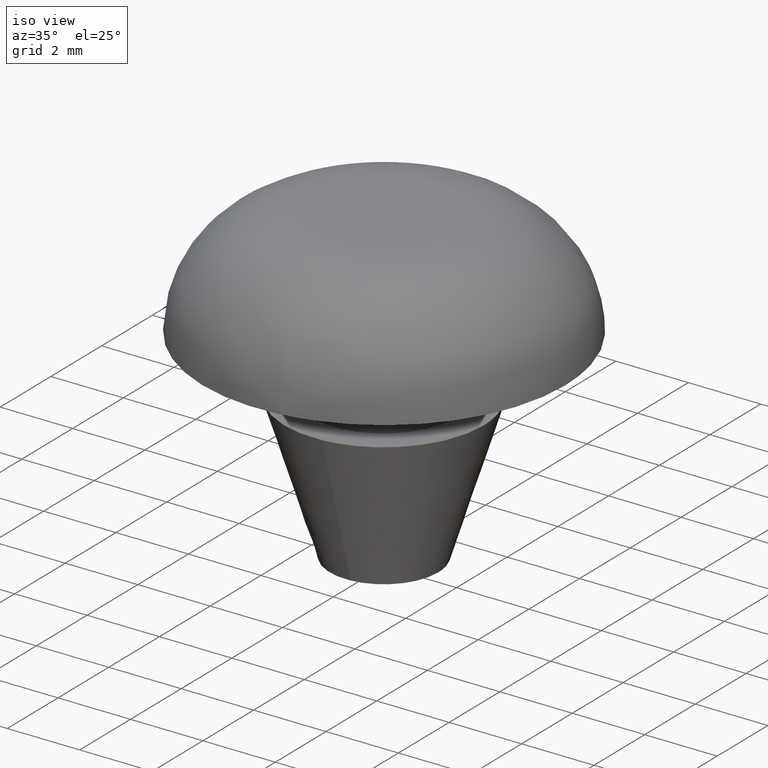
[diagram: clean part render]
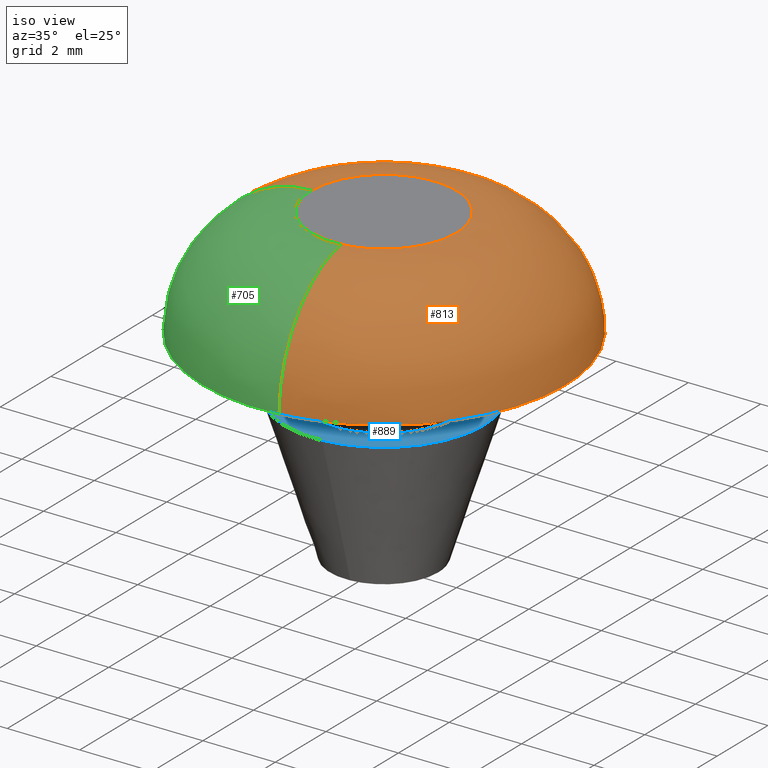
[diagram: same view with three faces highlighted in distinct colors, each labeled with its STEP entity id]
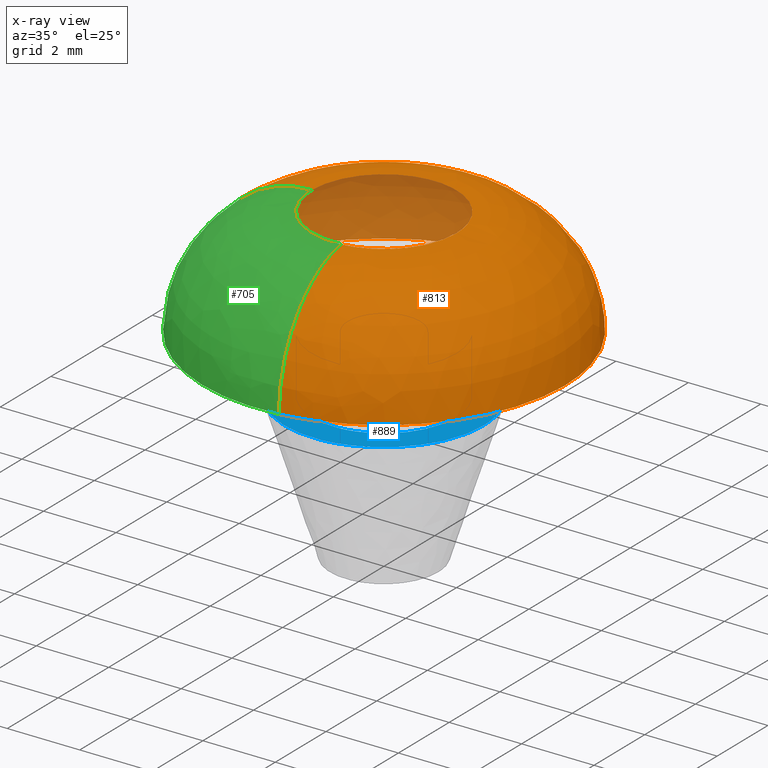
[diagram: x-ray of the same camera — body ghosted, the three highlighted faces saturated]
A machine part, iso view with three faces highlighted in distinct colors.
The next image is the same camera in x-ray (body ghosted, the three faces saturated) — at least one of them is partly hidden behind the body in this view.
Their STEP definitions:

[orange] entity #813 — the highlighted face is a freeform B-spline surface patch.
#635=CARTESIAN_POINT('',(0.230927431329645,-1.986621064501005,8.599999999998211));
#636=VERTEX_POINT('',#635);
#637=CARTESIAN_POINT('',(-1.999999910256900,0.0,8.599999999999998));
#638=VERTEX_POINT('',#637);
#654=CARTESIAN_POINT('',(-5.0,0.0,5.599999999999914));
#655=VERTEX_POINT('',#654);
#656=CARTESIAN_POINT('',(-5.000000000000001,0.0,5.599999999999914));
#657=CARTESIAN_POINT('',(-5.000000000000069,0.0,6.810153582727156));
#658=CARTESIAN_POINT('',(-4.160317843093622,0.0,7.681592375276995));
#659=CARTESIAN_POINT('',(-3.275378400517708,0.0,8.600000076304280));
#660=CARTESIAN_POINT('',(-1.999999910256900,0.0,8.600000000000000));
#668=(BOUNDED_CURVE()B_SPLINE_CURVE(2,(#656,#657,#658,#659,#660),.UNSPECIFIED.,.F.,.U.)B_SPLINE_CURVE_WITH_KNOTS((3,2,3),(0.499999999999988,0.666666666666667,0.841001366655721),.UNSPECIFIED.)CURVE()GEOMETRIC_REPRESENTATION_ITEM()RATIONAL_B_SPLINE_CURVE((0.860052973848937,0.860052973848927,1.0,0.853614263089564,0.860349207340873))REPRESENTATION_ITEM(''));
#669=EDGE_CURVE('',#655,#638,#668,.T.);
#671=CARTESIAN_POINT('',(0.577318058448556,-4.966558552899535,5.599999966541873));
#672=VERTEX_POINT('',#671);
#688=CARTESIAN_POINT('',(0.577318058448556,-4.966558552899536,5.599999966541873));
#689=CARTESIAN_POINT('',(0.577318529622757,-4.966558511717206,6.810153568720121));
#690=CARTESIAN_POINT('',(0.480365938960503,-4.132492361789115,7.681592375276559));
#691=CARTESIAN_POINT('',(0.378187686940704,-3.253470762815832,8.600000984968549));
#692=CARTESIAN_POINT('',(0.230927431329645,-1.986621064501005,8.599999999998211));
#700=(BOUNDED_CURVE()B_SPLINE_CURVE(2,(#688,#689,#690,#691,#692),.UNSPECIFIED.,.F.,.U.)B_SPLINE_CURVE_WITH_KNOTS((3,2,3),(0.499999997696014,0.666666666666667,0.841001513891619),.UNSPECIFIED.)CURVE()GEOMETRIC_REPRESENTATION_ITEM()RATIONAL_B_SPLINE_CURVE((0.822972751584642,0.822972749733435,0.956886118190660,0.816811520338825,0.823256224186568))REPRESENTATION_ITEM(''));
#701=EDGE_CURVE('',#672,#636,#700,.T.);
#706=CARTESIAN_POINT('',(-4.989820220953832,0.0,5.353068741598854));
#707=CARTESIAN_POINT('',(-5.101464853375409,0.0,6.704851345941022));
#708=CARTESIAN_POINT('',(-4.160317843093622,0.0,7.681592375276995));
#709=CARTESIAN_POINT('',(-3.172363074020589,0.0,8.706911424840628));
#710=CARTESIAN_POINT('',(-1.753339234404508,0.0,8.589842548816884));
#711=CARTESIAN_POINT('',(-4.989820220953833,4.989820220953833,5.353068741598856));
#712=CARTESIAN_POINT('',(-5.101464853375410,5.101464853375410,6.704851345941023));
#713=CARTESIAN_POINT('',(-4.160317843093622,4.160317843093622,7.681592375276994));
#714=CARTESIAN_POINT('',(-3.172363074020589,3.172363074020589,8.706911424840630));
#715=CARTESIAN_POINT('',(-1.753339234404508,1.753339234404508,8.589842548816886));
#716=CARTESIAN_POINT('',(0.0,4.989820220953832,5.353068741598854));
#717=CARTESIAN_POINT('',(0.0,5.101464853375409,6.704851345941022));
#718=CARTESIAN_POINT('',(0.0,4.160317843093622,7.681592375276995));
#719=CARTESIAN_POINT('',(0.0,3.172363074020589,8.706911424840628));
#720=CARTESIAN_POINT('',(0.0,1.753339234404508,8.589842548816884));
#721=CARTESIAN_POINT('',(4.989820220953833,4.989820220953833,5.353068741598856));
#722=CARTESIAN_POINT('',(5.101464853375410,5.101464853375410,6.704851345941023));
#723=CARTESIAN_POINT('',(4.160317843093622,4.160317843093622,7.681592375276994));
#724=CARTESIAN_POINT('',(3.172363074020589,3.172363074020589,8.706911424840630));
#725=CARTESIAN_POINT('',(1.753339234404508,1.753339234404508,8.589842548816886));
#726=CARTESIAN_POINT('',(4.989820220953832,0.0,5.353068741598854));
#727=CARTESIAN_POINT('',(5.101464853375409,0.0,6.704851345941022));
#728=CARTESIAN_POINT('',(4.160317843093622,0.0,7.681592375276995));
#729=CARTESIAN_POINT('',(3.172363074020589,0.0,8.706911424840628));
#730=CARTESIAN_POINT('',(1.753339234404508,0.0,8.589842548816884));
#731=CARTESIAN_POINT('',(4.989820220953833,-4.443393495377855,5.353068741598854));
#732=CARTESIAN_POINT('',(5.101464853375411,-4.542812113991143,6.704851345941023));
#733=CARTESIAN_POINT('',(4.160317843093622,-3.704728512077121,7.681592375276994));
#734=CARTESIAN_POINT('',(3.172363074020589,-2.824962989425185,8.706911424840628));
#735=CARTESIAN_POINT('',(1.753339234404507,-1.561334036971481,8.589842548816884));
#736=CARTESIAN_POINT('',(0.576145746293084,-4.956446500918591,5.353068741598856));
#737=CARTESIAN_POINT('',(0.589036707734146,-5.067344413710826,6.704851345941022));
#738=CARTESIAN_POINT('',(0.480367893508480,-4.132492134590143,7.681592375276995));
#739=CARTESIAN_POINT('',(0.366294457487454,-3.151145163876671,8.706911424840627));
#740=CARTESIAN_POINT('',(0.202447963449438,-1.741612268272524,8.589842548816884));
#748=(BOUNDED_SURFACE()B_SPLINE_SURFACE(2,2,((#706,#711,#716,#721,#726,#731,#736),(#707,#712,#717,#722,#727,#732,#737),(#708,#713,#718,#723,#728,#733,#738),(#709,#714,#719,#724,#729,#734,#739),(#710,#715,#720,#725,#730,#735,#740)),.UNSPECIFIED.,.F.,.F.,.U.)B_SPLINE_SURFACE_WITH_KNOTS((3,2,3),(3,2,2,3),(0.0,2.663132058494239,5.437431253561975),(0.0,8.267404837290364,16.534809674580728,24.140822124887858),.UNSPECIFIED.)GEOMETRIC_REPRESENTATION_ITEM()RATIONAL_B_SPLINE_SURFACE(((0.861514645304643,0.609182847786437,0.861514645304643,0.609182847786437,0.861514645304643,0.629369391587893,0.824371404709963),(0.845750646295843,0.598036017188695,0.845750646295843,0.598036017188695,0.845750646295843,0.617853187517267,0.809287052891270),(1.0,0.707106781186548,1.0,0.707106781186548,1.0,0.730538238691624,0.956886118190660),(0.839311814652135,0.593483075670512,0.839311814652135,0.593483075670512,0.839311814652135,0.613149374789042,0.803125824274040),(0.863126963319515,0.610322928788181,0.863126963319515,0.610322928788181,0.863126963319515,0.630547251550688,0.825914209436503)))REPRESENTATION_ITEM('')SURFACE());
#749=CARTESIAN_POINT('',(2.0,0.0,8.600000000000000));
#750=VERTEX_POINT('',#749);
#751=CARTESIAN_POINT('',(2.0,0.0,8.600000000000000));
#752=CARTESIAN_POINT('',(1.999999866241687,-1.780982936703756,8.599999999999104));
#753=CARTESIAN_POINT('',(0.230927431329646,-1.986621064501006,8.599999999998211));
#761=(BOUNDED_CURVE()B_SPLINE_CURVE(2,(#751,#752,#753),.UNSPECIFIED.,.F.,.U.)B_SPLINE_CURVE_WITH_KNOTS((3,3),(0.500000000000000,0.730000064695423),.UNSPECIFIED.)CURVE()GEOMETRIC_REPRESENTATION_ITEM()RATIONAL_B_SPLINE_CURVE((1.0,0.730538162896221,0.956886245526975))REPRESENTATION_ITEM(''));
#762=EDGE_CURVE('',#750,#636,#761,.T.);
#763=ORIENTED_EDGE('',*,*,#762,.T.);
#764=ORIENTED_EDGE('',*,*,#701,.F.);
#765=CARTESIAN_POINT('',(5.0,0.0,5.600000000000000));
#766=VERTEX_POINT('',#765);
#767=CARTESIAN_POINT('',(5.0,0.0,5.600000000000000));
#768=CARTESIAN_POINT('',(5.000000000000001,-4.452461291298444,5.600000000000000));
#769=CARTESIAN_POINT('',(0.577318058448556,-4.966558552899535,5.599999966541874));
#777=(BOUNDED_CURVE()B_SPLINE_CURVE(2,(#767,#768,#769),.UNSPECIFIED.,.F.,.U.)B_SPLINE_CURVE_WITH_KNOTS((3,3),(0.500000000000000,0.730000105180036),.UNSPECIFIED.)CURVE()GEOMETRIC_REPRESENTATION_ITEM()RATIONAL_B_SPLINE_CURVE((1.0,0.730538115465546,0.956886325210574))REPRESENTATION_ITEM(''));
#778=EDGE_CURVE('',#766,#672,#777,.T.);
#779=ORIENTED_EDGE('',*,*,#778,.F.);
#780=CARTESIAN_POINT('',(-5.0,0.0,5.599999999999914));
#781=CARTESIAN_POINT('',(-5.000000000000001,5.000000000000001,5.600000000000000));
#782=CARTESIAN_POINT('',(0.0,5.0,5.600000000000000));
#783=CARTESIAN_POINT('',(5.000000000000001,5.000000000000001,5.600000000000000));
#784=CARTESIAN_POINT('',(5.0,0.0,5.600000000000000));
#792=(BOUNDED_CURVE()B_SPLINE_CURVE(2,(#780,#781,#782,#783,#784),.UNSPECIFIED.,.F.,.U.)B_SPLINE_CURVE_WITH_KNOTS((3,2,3),(0.0,0.250000000000000,0.500000000000000),.UNSPECIFIED.)CURVE()GEOMETRIC_REPRESENTATION_ITEM()RATIONAL_B_SPLINE_CURVE((1.0,0.707106781186548,1.0,0.707106781186548,1.0))REPRESENTATION_ITEM(''));
#793=EDGE_CURVE('',#655,#766,#792,.T.);
#794=ORIENTED_EDGE('',*,*,#793,.F.);
#795=ORIENTED_EDGE('',*,*,#669,.T.);
#796=CARTESIAN_POINT('',(-1.999999910256900,0.0,8.599999999999998));
#797=CARTESIAN_POINT('',(-2.000000000000000,2.000000000000000,8.600000000000000));
#798=CARTESIAN_POINT('',(0.0,2.0,8.600000000000000));
#799=CARTESIAN_POINT('',(2.000000000000000,2.000000000000000,8.600000000000000));
#800=CARTESIAN_POINT('',(2.0,0.0,8.600000000000000));
#808=(BOUNDED_CURVE()B_SPLINE_CURVE(2,(#796,#797,#798,#799,#800),.UNSPECIFIED.,.F.,.U.)B_SPLINE_CURVE_WITH_KNOTS((3,2,3),(0.0,0.250000000000000,0.500000000000000),.UNSPECIFIED.)CURVE()GEOMETRIC_REPRESENTATION_ITEM()RATIONAL_B_SPLINE_CURVE((1.0,0.707106781186548,1.0,0.707106781186548,1.0))REPRESENTATION_ITEM(''));
#809=EDGE_CURVE('',#638,#750,#808,.T.);
#810=ORIENTED_EDGE('',*,*,#809,.T.);
#811=EDGE_LOOP('',(#763,#764,#779,#794,#795,#810));
#812=FACE_OUTER_BOUND('',#811,.T.);
#813=ADVANCED_FACE('',(#812),#748,.T.);

[blue] entity #889 — the highlighted face is a freeform B-spline surface patch.
#286=CARTESIAN_POINT('',(0.122096454071438,-1.996269635070069,4.0));
#287=VERTEX_POINT('',#286);
#293=CARTESIAN_POINT('',(2.0,0.0,4.0));
#294=VERTEX_POINT('',#293);
#295=CARTESIAN_POINT('',(2.0,0.0,4.0));
#296=CARTESIAN_POINT('',(2.0,-1.881413314089851,4.0));
#297=CARTESIAN_POINT('',(0.122096454071438,-1.996269635070070,4.000000000000000));
#305=(BOUNDED_CURVE()B_SPLINE_CURVE(2,(#295,#296,#297),.UNSPECIFIED.,.F.,.U.)B_SPLINE_CURVE_WITH_KNOTS((3,3),(0.500000000000000,0.739333070284946),.UNSPECIFIED.)CURVE()GEOMETRIC_REPRESENTATION_ITEM()RATIONAL_B_SPLINE_CURVE((1.0,0.719603866702944,0.976072273229979))REPRESENTATION_ITEM(''));
#306=EDGE_CURVE('',#294,#287,#305,.T.);
#308=CARTESIAN_POINT('',(-0.236065017184175,1.986019463059148,4.0));
#309=VERTEX_POINT('',#308);
#310=CARTESIAN_POINT('',(-0.236065017184175,1.986019463059149,4.000000000000000));
#311=CARTESIAN_POINT('',(-0.118446494991864,2.0,4.0));
#312=CARTESIAN_POINT('',(0.0,2.0,4.0));
#313=CARTESIAN_POINT('',(2.000000000000000,2.000000000000000,4.000000000000000));
#314=CARTESIAN_POINT('',(2.0,0.0,4.0));
#322=(BOUNDED_CURVE()B_SPLINE_CURVE(2,(#310,#311,#312,#313,#314),.UNSPECIFIED.,.F.,.U.)B_SPLINE_CURVE_WITH_KNOTS((3,2,3),(0.229562767279762,0.250000000000000,0.500000000000000),.UNSPECIFIED.)CURVE()GEOMETRIC_REPRESENTATION_ITEM()RATIONAL_B_SPLINE_CURVE((0.956027329978387,0.976056292499719,1.0,0.707106781186548,1.0))REPRESENTATION_ITEM(''));
#323=EDGE_CURVE('',#309,#294,#322,.T.);
#371=CARTESIAN_POINT('',(-2.0,0.0,4.0));
#372=VERTEX_POINT('',#371);
#373=CARTESIAN_POINT('',(-2.0,0.0,4.0));
#374=CARTESIAN_POINT('',(-2.000000000000000,1.776352161318441,4.000000000000001));
#375=CARTESIAN_POINT('',(-0.236065017184175,1.986019463059149,4.000000000000001));
#383=(BOUNDED_CURVE()B_SPLINE_CURVE(2,(#373,#374,#375),.UNSPECIFIED.,.F.,.U.)B_SPLINE_CURVE_WITH_KNOTS((3,3),(0.0,0.229562767279762),.UNSPECIFIED.)CURVE()GEOMETRIC_REPRESENTATION_ITEM()RATIONAL_B_SPLINE_CURVE((1.0,0.731050488686828,0.956027329978387))REPRESENTATION_ITEM(''));
#384=EDGE_CURVE('',#372,#309,#383,.T.);
#386=CARTESIAN_POINT('',(0.122096454071438,-1.996269635070070,4.000000000000001));
#387=CARTESIAN_POINT('',(0.061104899846485,-2.000000000000000,4.0));
#388=CARTESIAN_POINT('',(0.0,-2.0,4.0));
#389=CARTESIAN_POINT('',(-2.000000000000000,-2.000000000000000,4.000000000000000));
#390=CARTESIAN_POINT('',(-2.0,0.0,4.0));
#398=(BOUNDED_CURVE()B_SPLINE_CURVE(2,(#386,#387,#388,#389,#390),.UNSPECIFIED.,.F.,.U.)B_SPLINE_CURVE_WITH_KNOTS((3,2,3),(0.739333070284947,0.750000000000000,1.0),.UNSPECIFIED.)CURVE()GEOMETRIC_REPRESENTATION_ITEM()RATIONAL_B_SPLINE_CURVE((0.976072273229982,0.987502914483605,1.0,0.707106781186548,1.0))REPRESENTATION_ITEM(''));
#399=EDGE_CURVE('',#287,#372,#398,.T.);
#472=CARTESIAN_POINT('',(0.215762513258509,-2.741522667765943,4.000000000001242));
#473=VERTEX_POINT('',#472);
#479=CARTESIAN_POINT('',(-2.750000000000000,0.0,4.0));
#480=VERTEX_POINT('',#479);
#481=CARTESIAN_POINT('',(0.215762513258509,-2.741522667765943,4.000000000001241));
#482=CARTESIAN_POINT('',(0.108047794278028,-2.750000000000000,4.0));
#483=CARTESIAN_POINT('',(0.0,-2.750000000000000,4.0));
#484=CARTESIAN_POINT('',(-2.750000000000000,-2.750000000000000,4.000000000000000));
#485=CARTESIAN_POINT('',(-2.750000000000000,0.0,4.0));
#493=(BOUNDED_CURVE()B_SPLINE_CURVE(2,(#481,#482,#483,#484,#485),.UNSPECIFIED.,.F.,.U.)B_SPLINE_CURVE_WITH_KNOTS((3,2,3),(0.736331300631903,0.750000000000000,1.0),.UNSPECIFIED.)CURVE()GEOMETRIC_REPRESENTATION_ITEM()RATIONAL_B_SPLINE_CURVE((0.969723356170014,0.983986122580339,1.0,0.707106781186548,1.0))REPRESENTATION_ITEM(''));
#494=EDGE_CURVE('',#473,#480,#493,.T.);
#496=CARTESIAN_POINT('',(-0.215762513258509,2.741522667765943,4.000000000001242));
#497=VERTEX_POINT('',#496);
#498=CARTESIAN_POINT('',(-2.750000000000000,0.0,4.0));
#499=CARTESIAN_POINT('',(-2.750000000000000,2.542073852047226,4.000000000000001));
#500=CARTESIAN_POINT('',(-0.215762513258509,2.741522667765943,4.000000000001241));
#508=(BOUNDED_CURVE()B_SPLINE_CURVE(2,(#498,#499,#500),.UNSPECIFIED.,.F.,.U.)B_SPLINE_CURVE_WITH_KNOTS((3,3),(0.0,0.236331300631903),.UNSPECIFIED.)CURVE()GEOMETRIC_REPRESENTATION_ITEM()RATIONAL_B_SPLINE_CURVE((1.0,0.723120658606208,0.969723356170013))REPRESENTATION_ITEM(''));
#509=EDGE_CURVE('',#480,#497,#508,.T.);
#555=CARTESIAN_POINT('',(2.750000000000000,0.0,4.0));
#556=VERTEX_POINT('',#555);
#557=CARTESIAN_POINT('',(-0.215762513258509,2.741522667765943,4.000000000001241));
#558=CARTESIAN_POINT('',(-0.108047794278028,2.750000000000000,4.000000000000001));
#559=CARTESIAN_POINT('',(0.0,2.750000000000000,4.0));
#560=CARTESIAN_POINT('',(2.750000000000000,2.750000000000000,4.000000000000000));
#561=CARTESIAN_POINT('',(2.750000000000000,0.0,4.0));
#569=(BOUNDED_CURVE()B_SPLINE_CURVE(2,(#557,#558,#559,#560,#561),.UNSPECIFIED.,.F.,.U.)B_SPLINE_CURVE_WITH_KNOTS((3,2,3),(0.236331300631903,0.250000000000000,0.500000000000000),.UNSPECIFIED.)CURVE()GEOMETRIC_REPRESENTATION_ITEM()RATIONAL_B_SPLINE_CURVE((0.969723356170013,0.983986122580339,1.0,0.707106781186548,1.0))REPRESENTATION_ITEM(''));
#570=EDGE_CURVE('',#497,#556,#569,.T.);
#572=CARTESIAN_POINT('',(2.750000000000000,0.0,4.0));
#573=CARTESIAN_POINT('',(2.750000000000000,-2.542073852047209,4.000000000000001));
#574=CARTESIAN_POINT('',(0.215762513258509,-2.741522667765943,4.000000000001242));
#582=(BOUNDED_CURVE()B_SPLINE_CURVE(2,(#572,#573,#574),.UNSPECIFIED.,.F.,.U.)B_SPLINE_CURVE_WITH_KNOTS((3,3),(0.500000000000000,0.736331300631902),.UNSPECIFIED.)CURVE()GEOMETRIC_REPRESENTATION_ITEM()RATIONAL_B_SPLINE_CURVE((1.0,0.723120658606210,0.969723356170011))REPRESENTATION_ITEM(''));
#583=EDGE_CURVE('',#556,#473,#582,.T.);
#872=CARTESIAN_POINT('',(-3.024724989339933,-3.023885292198654,4.0));
#873=CARTESIAN_POINT('',(3.024725136861429,-3.023885292198654,4.0));
#874=CARTESIAN_POINT('',(-3.024724989339933,3.023885292198654,4.0));
#875=CARTESIAN_POINT('',(3.024725136861429,3.023885292198654,4.0));
#876=B_SPLINE_SURFACE_WITH_KNOTS('',1,1,((#872,#874),(#873,#875)),.UNSPECIFIED.,.F.,.F.,.U.,(2,2),(2,2),(0.0,6.049450126201361),(0.0,6.047770584397307),.UNSPECIFIED.);
#877=ORIENTED_EDGE('',*,*,#494,.F.);
#878=ORIENTED_EDGE('',*,*,#583,.F.);
#879=ORIENTED_EDGE('',*,*,#570,.F.);
#880=ORIENTED_EDGE('',*,*,#509,.F.);
#881=EDGE_LOOP('',(#877,#878,#879,#880));
#882=FACE_OUTER_BOUND('',#881,.T.);
#883=ORIENTED_EDGE('',*,*,#306,.T.);
#884=ORIENTED_EDGE('',*,*,#399,.T.);
#885=ORIENTED_EDGE('',*,*,#384,.T.);
#886=ORIENTED_EDGE('',*,*,#323,.T.);
#887=EDGE_LOOP('',(#883,#884,#885,#886));
#888=FACE_BOUND('',#887,.T.);
#889=ADVANCED_FACE('',(#882,#888),#876,.T.);

[green] entity #705 — the highlighted face is a freeform B-spline surface patch.
#602=CARTESIAN_POINT('',(0.576145187417374,-4.956446565883218,5.353068741598857));
#603=CARTESIAN_POINT('',(0.589036136353882,-5.067344480129004,6.704851345941022));
#604=CARTESIAN_POINT('',(0.480367427539670,-4.132492188755121,7.681592375276995));
#605=CARTESIAN_POINT('',(0.366294102172716,-3.151145205179037,8.706911424840627));
#606=CARTESIAN_POINT('',(0.202447767069876,-1.741612291100005,8.589842548816883));
#607=CARTESIAN_POINT('',(0.289039191084745,-4.989820220953833,5.353068741598854));
#608=CARTESIAN_POINT('',(0.295506292666597,-5.101464853375411,6.704851345941022));
#609=CARTESIAN_POINT('',(0.240989625031691,-4.160317843093621,7.681592375276995));
#610=CARTESIAN_POINT('',(0.183761581808402,-3.172363074020588,8.706911424840628));
#611=CARTESIAN_POINT('',(0.101563529660103,-1.753339234404508,8.589842548816888));
#612=CARTESIAN_POINT('',(0.0,-4.989820220953832,5.353068741598854));
#613=CARTESIAN_POINT('',(0.0,-5.101464853375409,6.704851345941022));
#614=CARTESIAN_POINT('',(0.0,-4.160317843093622,7.681592375276995));
#615=CARTESIAN_POINT('',(0.0,-3.172363074020589,8.706911424840628));
#616=CARTESIAN_POINT('',(0.0,-1.753339234404508,8.589842548816884));
#617=CARTESIAN_POINT('',(-4.989820220953833,-4.989820220953833,5.353068741598856));
#618=CARTESIAN_POINT('',(-5.101464853375410,-5.101464853375410,6.704851345941023));
#619=CARTESIAN_POINT('',(-4.160317843093622,-4.160317843093622,7.681592375276994));
#620=CARTESIAN_POINT('',(-3.172363074020589,-3.172363074020589,8.706911424840630));
#621=CARTESIAN_POINT('',(-1.753339234404508,-1.753339234404508,8.589842548816886));
#622=CARTESIAN_POINT('',(-4.989820220953832,0.0,5.353068741598854));
#623=CARTESIAN_POINT('',(-5.101464853375409,0.0,6.704851345941022));
#624=CARTESIAN_POINT('',(-4.160317843093622,0.0,7.681592375276995));
#625=CARTESIAN_POINT('',(-3.172363074020589,0.0,8.706911424840628));
#626=CARTESIAN_POINT('',(-1.753339234404508,0.0,8.589842548816884));
#634=(BOUNDED_SURFACE()B_SPLINE_SURFACE(2,2,((#602,#607,#612,#617,#622),(#603,#608,#613,#618,#623),(#604,#609,#614,#619,#624),(#605,#610,#615,#620,#625),(#606,#611,#616,#621,#626)),.UNSPECIFIED.,.F.,.F.,.U.)B_SPLINE_SURFACE_WITH_KNOTS((3,2,3),(3,2,3),(0.0,2.663132058494238,5.437431253561972),(0.0,0.661391756230297,8.928796593520660),.UNSPECIFIED.)GEOMETRIC_REPRESENTATION_ITEM()RATIONAL_B_SPLINE_SURFACE(((0.824371437052299,0.841328120754575,0.861514645304643,0.609182847786437,0.861514645304643),(0.809287084641806,0.825933494866397,0.845750646295843,0.598036017188695,0.845750646295843),(0.956886155731908,0.976568564840903,1.0,0.707106781186548,1.0),(0.803125855782854,0.819645534288850,0.839311814652135,0.593483075670512,0.839311814652135),(0.825914241839366,0.842902659844425,0.863126963319515,0.610322928788181,0.863126963319515)))REPRESENTATION_ITEM('')SURFACE());
#635=CARTESIAN_POINT('',(0.230927431329645,-1.986621064501005,8.599999999998211));
#636=VERTEX_POINT('',#635);
#637=CARTESIAN_POINT('',(-1.999999910256900,0.0,8.599999999999998));
#638=VERTEX_POINT('',#637);
#639=CARTESIAN_POINT('',(0.230927431329646,-1.986621064501006,8.599999999998211));
#640=CARTESIAN_POINT('',(0.115851016147988,-1.999997757965159,8.599999999998257));
#641=CARTESIAN_POINT('',(-0.000000247955235,-1.999997824619911,8.599999999998309));
#642=CARTESIAN_POINT('',(-2.000000069325372,-1.999998975315095,8.599999999999202));
#643=CARTESIAN_POINT('',(-1.999999910256900,0.0,8.599999999999998));
#651=(BOUNDED_CURVE()B_SPLINE_CURVE(2,(#639,#640,#641,#642,#643),.UNSPECIFIED.,.F.,.U.)B_SPLINE_CURVE_WITH_KNOTS((3,2,3),(0.730000064695423,0.750000000000000,1.0),.UNSPECIFIED.)CURVE()GEOMETRIC_REPRESENTATION_ITEM()RATIONAL_B_SPLINE_CURVE((0.956886245526975,0.976568618290326,1.0,0.707106781186548,1.0))REPRESENTATION_ITEM(''));
#652=EDGE_CURVE('',#636,#638,#651,.T.);
#653=ORIENTED_EDGE('',*,*,#652,.T.);
#654=CARTESIAN_POINT('',(-5.0,0.0,5.599999999999914));
#655=VERTEX_POINT('',#654);
#656=CARTESIAN_POINT('',(-5.000000000000001,0.0,5.599999999999914));
#657=CARTESIAN_POINT('',(-5.000000000000069,0.0,6.810153582727156));
#658=CARTESIAN_POINT('',(-4.160317843093622,0.0,7.681592375276995));
#659=CARTESIAN_POINT('',(-3.275378400517708,0.0,8.600000076304280));
#660=CARTESIAN_POINT('',(-1.999999910256900,0.0,8.600000000000000));
#668=(BOUNDED_CURVE()B_SPLINE_CURVE(2,(#656,#657,#658,#659,#660),.UNSPECIFIED.,.F.,.U.)B_SPLINE_CURVE_WITH_KNOTS((3,2,3),(0.499999999999988,0.666666666666667,0.841001366655721),.UNSPECIFIED.)CURVE()GEOMETRIC_REPRESENTATION_ITEM()RATIONAL_B_SPLINE_CURVE((0.860052973848937,0.860052973848927,1.0,0.853614263089564,0.860349207340873))REPRESENTATION_ITEM(''));
#669=EDGE_CURVE('',#655,#638,#668,.T.);
#670=ORIENTED_EDGE('',*,*,#669,.F.);
#671=CARTESIAN_POINT('',(0.577318058448556,-4.966558552899535,5.599999966541873));
#672=VERTEX_POINT('',#671);
#673=CARTESIAN_POINT('',(0.577318058448556,-4.966558552899535,5.599999966541874));
#674=CARTESIAN_POINT('',(0.289627585783185,-4.999999999999999,5.600000000000000));
#675=CARTESIAN_POINT('',(0.0,-5.0,5.600000000000000));
#676=CARTESIAN_POINT('',(-5.000000000000001,-5.000000000000001,5.600000000000000));
#677=CARTESIAN_POINT('',(-5.0,0.0,5.599999999999914));
#685=(BOUNDED_CURVE()B_SPLINE_CURVE(2,(#673,#674,#675,#676,#677),.UNSPECIFIED.,.F.,.U.)B_SPLINE_CURVE_WITH_KNOTS((3,2,3),(0.730000105180036,0.750000000000000,1.0),.UNSPECIFIED.)CURVE()GEOMETRIC_REPRESENTATION_ITEM()RATIONAL_B_SPLINE_CURVE((0.956886325210574,0.976568665721001,1.0,0.707106781186548,1.0))REPRESENTATION_ITEM(''));
#686=EDGE_CURVE('',#672,#655,#685,.T.);
#687=ORIENTED_EDGE('',*,*,#686,.F.);
#688=CARTESIAN_POINT('',(0.577318058448556,-4.966558552899536,5.599999966541873));
#689=CARTESIAN_POINT('',(0.577318529622757,-4.966558511717206,6.810153568720121));
#690=CARTESIAN_POINT('',(0.480365938960503,-4.132492361789115,7.681592375276559));
#691=CARTESIAN_POINT('',(0.378187686940704,-3.253470762815832,8.600000984968549));
#692=CARTESIAN_POINT('',(0.230927431329645,-1.986621064501005,8.599999999998211));
#700=(BOUNDED_CURVE()B_SPLINE_CURVE(2,(#688,#689,#690,#691,#692),.UNSPECIFIED.,.F.,.U.)B_SPLINE_CURVE_WITH_KNOTS((3,2,3),(0.499999997696014,0.666666666666667,0.841001513891619),.UNSPECIFIED.)CURVE()GEOMETRIC_REPRESENTATION_ITEM()RATIONAL_B_SPLINE_CURVE((0.822972751584642,0.822972749733435,0.956886118190660,0.816811520338825,0.823256224186568))REPRESENTATION_ITEM(''));
#701=EDGE_CURVE('',#672,#636,#700,.T.);
#702=ORIENTED_EDGE('',*,*,#701,.T.);
#703=EDGE_LOOP('',(#653,#670,#687,#702));
#704=FACE_OUTER_BOUND('',#703,.T.);
#705=ADVANCED_FACE('',(#704),#634,.T.);